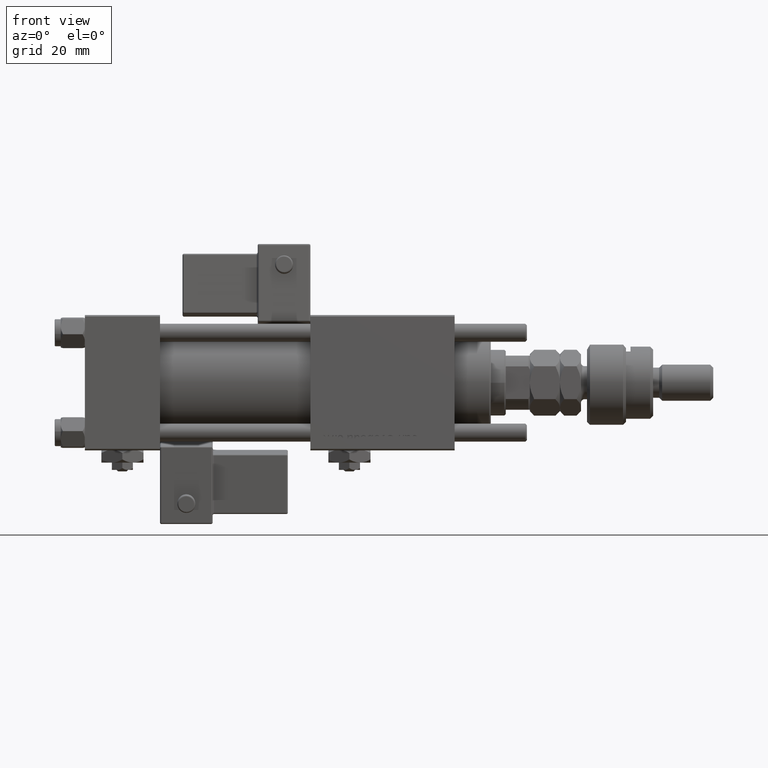
[diagram: clean part render]
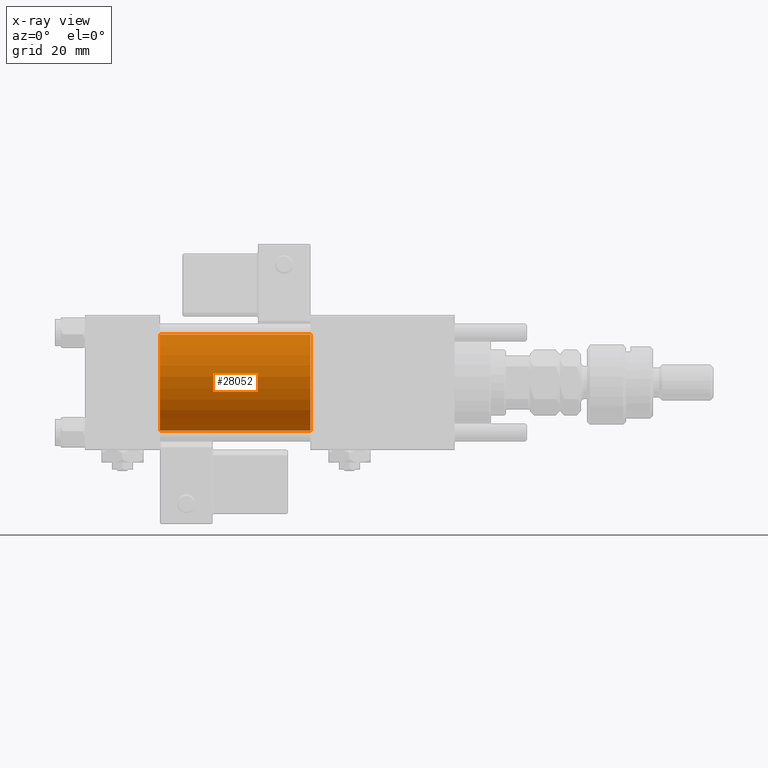
[diagram: x-ray — body ghosted, one internal face saturated and labeled with its STEP entity id]
A machine part, front view, then the same camera in x-ray: the body is ghosted and one INTERNAL B-rep face — a face not visible from any outside direction — is saturated and labeled: STEP entity #28052.
In plain terms, the highlighted cylindrical surface (partial cylindrical patch) has radius 16 mm, axis along (-1, -0, -0).
Its self-contained STEP definition (entity closure, byte-faithful):
#4364 = VECTOR ( 'NONE', #45085, 1000.000000000000000 ) ;
#5673 = LINE ( 'NONE', #20540, #4364 ) ;
#8382 = DIRECTION ( 'NONE',  ( -1.000000000000000000, -0.000000000000000000, -0.000000000000000000 ) ) ;
#9720 = EDGE_CURVE ( 'NONE', #24069, #29369, #45040, .T. ) ;
#10523 = DIRECTION ( 'NONE',  ( 1.000000000000000000, 0.000000000000000000, 0.000000000000000000 ) ) ;
#11164 = CARTESIAN_POINT ( 'NONE',  ( 25.00000000000000000, -2.602085213965210642E-15, 0.000000000000000000 ) ) ;
#14173 = AXIS2_PLACEMENT_3D ( 'NONE', #52655, #8382, #42939 ) ;
#14174 = ORIENTED_EDGE ( 'NONE', *, *, #9720, .F. ) ;
#14869 = CARTESIAN_POINT ( 'NONE',  ( 75.00000000000001421, -2.602085213965210642E-15, 0.000000000000000000 ) ) ;
#14892 = EDGE_LOOP ( 'NONE', ( #61677, #63810, #63005, #14174 ) ) ;
#15699 = EDGE_CURVE ( 'NONE', #35770, #50831, #5673, .T. ) ;
#17271 = VECTOR ( 'NONE', #60573, 1000.000000000000000 ) ;
#17292 = AXIS2_PLACEMENT_3D ( 'NONE', #11164, #10523, #45729 ) ;
#19372 = CARTESIAN_POINT ( 'NONE',  ( 25.00000000000000000, -6.426503353294456087E-16, -16.00000000000000000 ) ) ;
#20540 = CARTESIAN_POINT ( 'NONE',  ( 75.00000000000001421, -6.426503353294456087E-16, -16.00000000000000000 ) ) ;
#20767 = CARTESIAN_POINT ( 'NONE',  ( 75.00000000000001421, -2.602085213965210642E-15, 16.00000000000000000 ) ) ;
#24069 = VERTEX_POINT ( 'NONE', #20767 ) ;
#28052 = ADVANCED_FACE ( 'NONE', ( #53280 ), #32296, .F. ) ;
#29369 = VERTEX_POINT ( 'NONE', #62669 ) ;
#29862 = AXIS2_PLACEMENT_3D ( 'NONE', #14869, #34570, #54289 ) ;
#32296 = CYLINDRICAL_SURFACE ( 'NONE', #14173, 16.00000000000000000 ) ;
#34570 = DIRECTION ( 'NONE',  ( 1.000000000000000000, 0.000000000000000000, 0.000000000000000000 ) ) ;
#35770 = VERTEX_POINT ( 'NONE', #46103 ) ;
#42939 = DIRECTION ( 'NONE',  ( 0.000000000000000000, 0.000000000000000000, 1.000000000000000000 ) ) ;
#45040 = LINE ( 'NONE', #45993, #17271 ) ;
#45085 = DIRECTION ( 'NONE',  ( -1.000000000000000000, -0.000000000000000000, -0.000000000000000000 ) ) ;
#45131 = CIRCLE ( 'NONE', #17292, 16.00000000000000000 ) ;
#45729 = DIRECTION ( 'NONE',  ( 0.000000000000000000, 0.000000000000000000, -1.000000000000000000 ) ) ;
#45993 = CARTESIAN_POINT ( 'NONE',  ( 75.00000000000001421, -2.602085213965210642E-15, 16.00000000000000000 ) ) ;
#46103 = CARTESIAN_POINT ( 'NONE',  ( 75.00000000000001421, -6.426503353294456087E-16, -16.00000000000000000 ) ) ;
#49480 = CIRCLE ( 'NONE', #29862, 16.00000000000000000 ) ;
#50465 = EDGE_CURVE ( 'NONE', #29369, #50831, #45131, .T. ) ;
#50831 = VERTEX_POINT ( 'NONE', #19372 ) ;
#52655 = CARTESIAN_POINT ( 'NONE',  ( 75.00000000000001421, -2.602085213965210642E-15, 0.000000000000000000 ) ) ;
#53280 = FACE_OUTER_BOUND ( 'NONE', #14892, .T. ) ;
#54289 = DIRECTION ( 'NONE',  ( 0.000000000000000000, 0.000000000000000000, -1.000000000000000000 ) ) ;
#57829 = EDGE_CURVE ( 'NONE', #24069, #35770, #49480, .T. ) ;
#60573 = DIRECTION ( 'NONE',  ( -1.000000000000000000, -0.000000000000000000, -0.000000000000000000 ) ) ;
#61677 = ORIENTED_EDGE ( 'NONE', *, *, #57829, .T. ) ;
#62669 = CARTESIAN_POINT ( 'NONE',  ( 25.00000000000000000, -2.602085213965210642E-15, 16.00000000000000000 ) ) ;
#63005 = ORIENTED_EDGE ( 'NONE', *, *, #50465, .F. ) ;
#63810 = ORIENTED_EDGE ( 'NONE', *, *, #15699, .T. ) ;